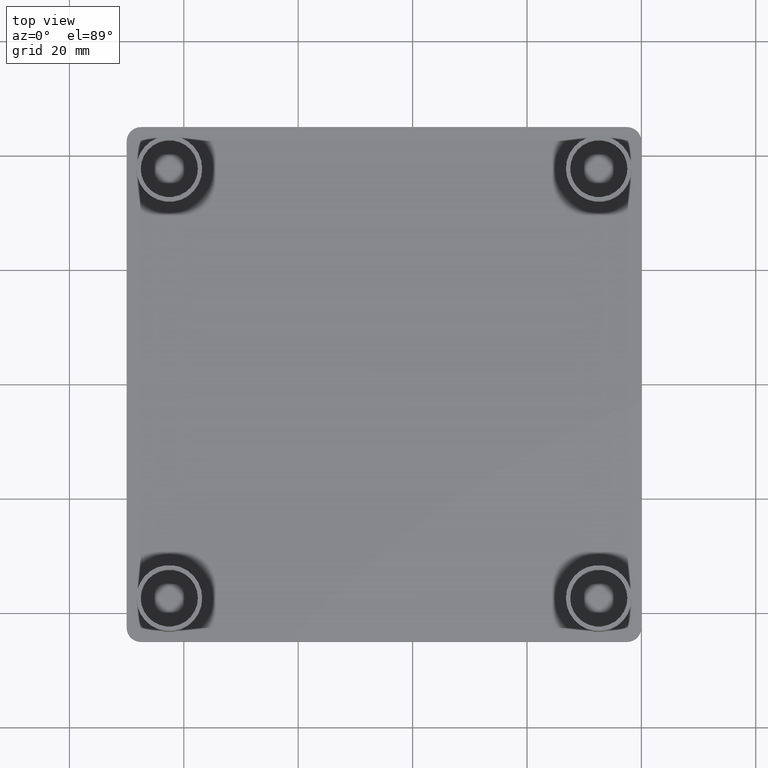
[diagram: clean part render]
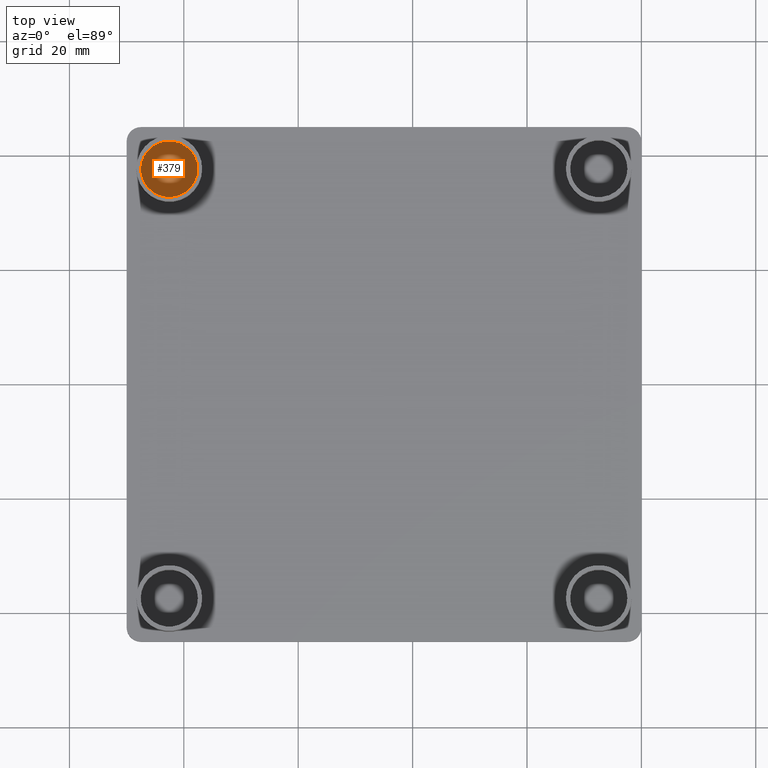
[diagram: same view with one face highlighted and labeled with its STEP entity id]
A machine part, top view. The second image highlights one B-rep face of the part: STEP entity #379.
In plain terms, the highlighted planar face has unit normal (0, 0, 1).
Its self-contained STEP definition (entity closure, byte-faithful):
#354=CARTESIAN_POINT('',(-98.999955232832463,-53.999977732792559,0.0));
#355=DIRECTION('',(0.0,0.0,1.0));
#356=DIRECTION('',(1.0,0.0,0.0));
#357=AXIS2_PLACEMENT_3D('',#354,#355,#356);
#358=PLANE('',#357);
#359=CARTESIAN_POINT('',(-87.549999999649813,37.550022499850002,0.0));
#360=VERTEX_POINT('',#359);
#361=CARTESIAN_POINT('',(-77.549999999689817,37.550022499850002,0.0));
#362=VERTEX_POINT('',#361);
#363=CARTESIAN_POINT('',(-82.549999999669808,37.550022499850002,0.0));
#364=DIRECTION('',(0.0,0.0,-1.0));
#365=DIRECTION('',(1.0,0.0,0.0));
#366=AXIS2_PLACEMENT_3D('',#363,#364,#365);
#367=CIRCLE('',#366,4.999999999980001);
#368=EDGE_CURVE('',#360,#362,#367,.T.);
#369=ORIENTED_EDGE('',*,*,#368,.F.);
#370=CARTESIAN_POINT('',(-82.549999999669808,37.550022499850002,0.0));
#371=DIRECTION('',(0.0,0.0,-1.0));
#372=DIRECTION('',(1.0,0.0,0.0));
#373=AXIS2_PLACEMENT_3D('',#370,#371,#372);
#374=CIRCLE('',#373,4.999999999980001);
#375=EDGE_CURVE('',#362,#360,#374,.T.);
#376=ORIENTED_EDGE('',*,*,#375,.F.);
#377=EDGE_LOOP('',(#369,#376));
#378=FACE_OUTER_BOUND('',#377,.T.);
#379=ADVANCED_FACE('',(#378),#358,.T.);